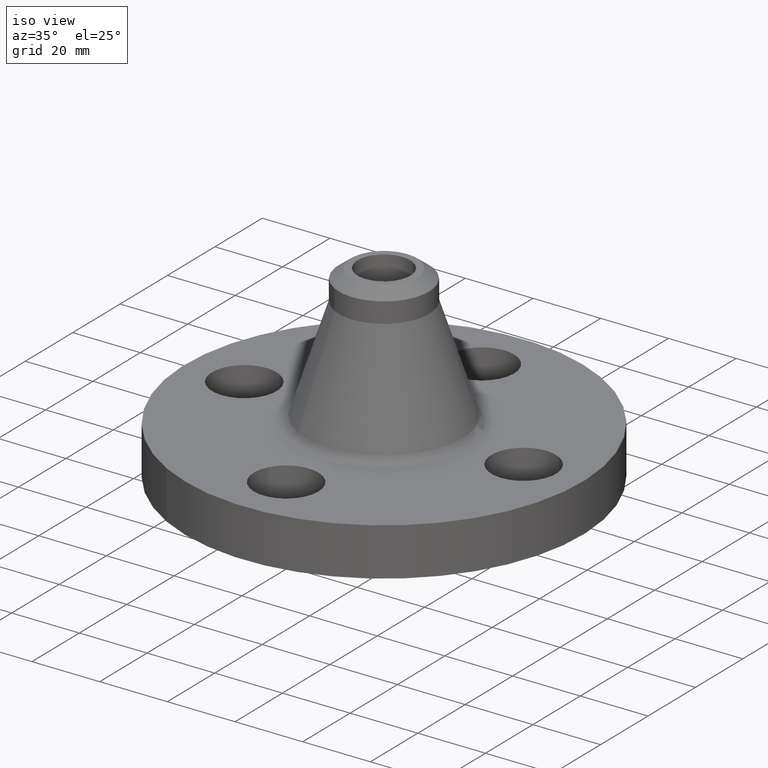
[diagram: clean part render]
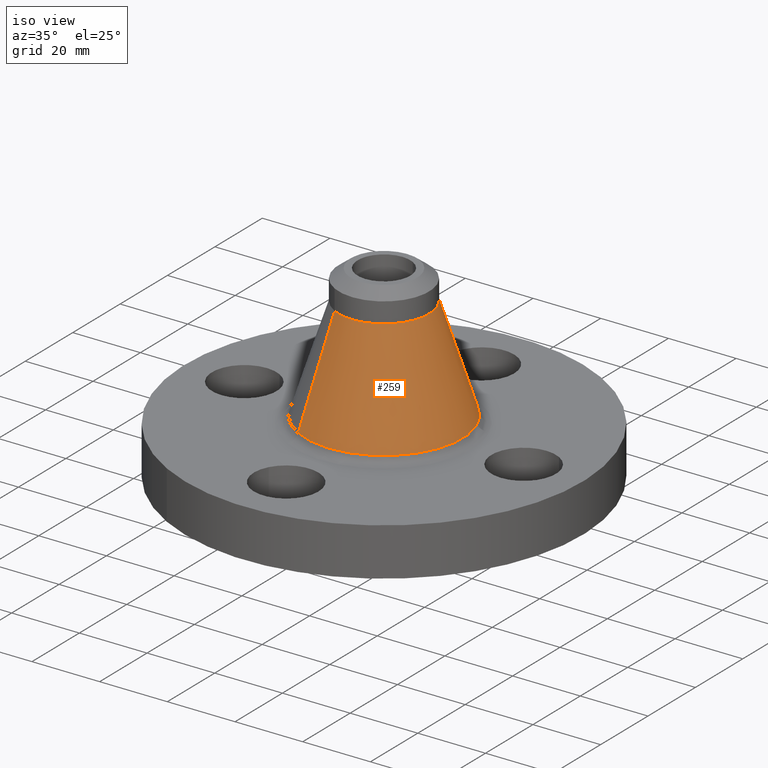
[diagram: same view with one face highlighted and labeled with its STEP entity id]
A machine part, iso view. The second image highlights one B-rep face of the part: STEP entity #259.
In plain terms, the highlighted conical surface has half-angle 17.883 deg.
Its self-contained STEP definition (entity closure, byte-faithful):
#195=AXIS2_PLACEMENT_3D('Circle Axis2P3D',#193,#194,$) ;
#232=AXIS2_PLACEMENT_3D('Cone Axis2P3D',#229,#230,#231) ;
#243=AXIS2_PLACEMENT_3D('Circle Axis2P3D',#241,#242,$) ;
#190=CARTESIAN_POINT('Vertex',(0.437797012116,0.801382055282,0.643150699568)) ;
#193=CARTESIAN_POINT('Axis2P3D Location',(0.,0.,0.643150699568)) ;
#197=CARTESIAN_POINT('Vertex',(-0.437797012116,-0.801382055282,0.643150699568)) ;
#229=CARTESIAN_POINT('Axis2P3D Location',(0.,0.,1.84615436507)) ;
#234=CARTESIAN_POINT('Line Origine',(0.344747709942,0.631056450138,1.24465253232)) ;
#238=CARTESIAN_POINT('Vertex',(0.251698407768,0.460730844994,1.84615436507)) ;
#241=CARTESIAN_POINT('Axis2P3D Location',(0.,0.,1.84615436507)) ;
#245=CARTESIAN_POINT('Vertex',(-0.251698407768,-0.460730844994,1.84615436507)) ;
#248=CARTESIAN_POINT('Line Origine',(-0.344747709942,-0.631056450138,1.24465253232)) ;
#194=DIRECTION('Axis2P3D Direction',(0.,0.,-0.0393700787402)) ;
#230=DIRECTION('Axis2P3D Direction',(0.,0.,-0.0393700787402)) ;
#231=DIRECTION('Axis2P3D XDirection',(-0.0188750212049,-0.0345504945626,0.)) ;
#235=DIRECTION('Vector Direction',(0.00579609439236,0.0106096796191,-0.0374678940986)) ;
#242=DIRECTION('Axis2P3D Direction',(0.,0.,-0.0393700787402)) ;
#249=DIRECTION('Vector Direction',(-0.00579609439236,-0.0106096796191,-0.0374678940986)) ;
#236=VECTOR('Line Direction',#235,0.0393700787402) ;
#250=VECTOR('Line Direction',#249,0.0393700787402) ;
#254=ORIENTED_EDGE('',*,*,#199,.F.) ;
#255=ORIENTED_EDGE('',*,*,#240,.T.) ;
#256=ORIENTED_EDGE('',*,*,#247,.T.) ;
#257=ORIENTED_EDGE('',*,*,#252,.F.) ;
#259=ADVANCED_FACE('PartBody',(#258),#233,.T.) ;
#196=CIRCLE('generated circle',#195,0.91316998546) ;
#244=CIRCLE('generated circle',#243,0.525000000002) ;
#233=CONICAL_SURFACE('Cone',#232,0.525000000002,0.312120637866) ;
#199=EDGE_CURVE('',#191,#198,#196,.T.) ;
#240=EDGE_CURVE('',#191,#239,#237,.F.) ;
#247=EDGE_CURVE('',#239,#246,#244,.T.) ;
#252=EDGE_CURVE('',#198,#246,#251,.F.) ;
#253=EDGE_LOOP('',(#254,#255,#256,#257)) ;
#258=FACE_OUTER_BOUND('',#253,.T.) ;
#237=LINE('Line',#234,#236) ;
#251=LINE('Line',#248,#250) ;
#191=VERTEX_POINT('',#190) ;
#198=VERTEX_POINT('',#197) ;
#239=VERTEX_POINT('',#238) ;
#246=VERTEX_POINT('',#245) ;